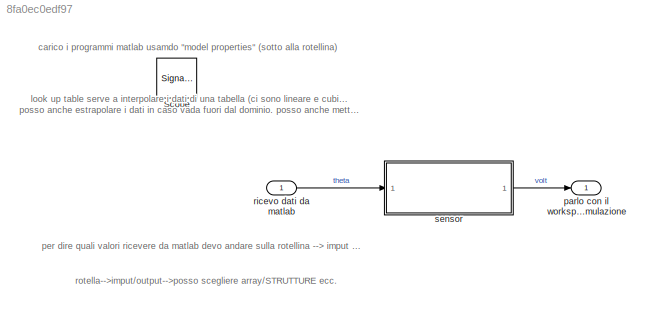
MODEL slx_8fa0ec0edf97
KIND model
CONFIG InitFcn = load 'variabili.mat'\n\n%eseguo il punto m per inizializzare la porta di imput\n%senza load, loas solo con .mat\nvariabili_porta_imput 
CONFIG StopFcn = tempo = yout.time;\n\nuscita = yout.signals.values;\n\nplot(tempo,uscita)
BLOCK [SignalViewerScope] Scope
  IOType = viewer
  MaxDataPoints = 7500
  NumInputPorts = 2
  Ports = []
  RefreshTime = 0.035000
  ShowDataMarkers = off
  ShowLegends = off
  YMax = 5~5
  YMin = -5~-5
BLOCK [Outport] parlo con il workspace a fine simulazione
  IconDisplay = Port number
BLOCK [Inport] ricevo dati da matlab
  IconDisplay = Port number
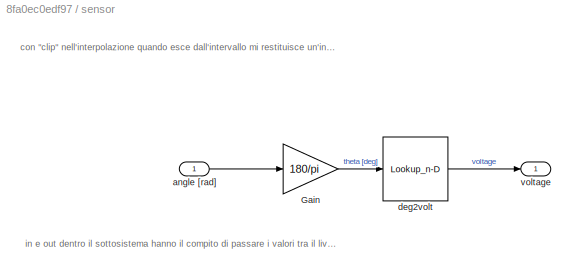
BLOCK [SubSystem] sensor
  FunctionWithSeparateData = off
  MaskHideContents = off
  MinAlgLoopOccurrences = off
  Opaque = off
  Ports = [1, 1]
  PropExecContextOutsideSubsystem = off
  RTWSystemCode = Auto
  RequestExecContextInheritance = off
BLOCK [Gain] sensor/Gain
  Gain = 180/pi
  OutDataTypeStr = Inherit: Inherit via internal rule
  ParamDataTypeStr = Inherit: Inherit via internal rule
  SaturateOnIntegerOverflow = off
BLOCK [Inport] sensor/angle [rad]
  IconDisplay = Port number
BLOCK [Lookup_n-D] sensor/deg2volt
  BreakpointsForDimension1 = var
  ExtrapMethod = Clip
  InternalRulePriority = Speed
  NumberOfTableDimensions = 1
  Ports = [1, 1]
  RndMeth = Simplest
  Table = var2
  TableMax = [4.5]
  TableMin = [0.5]
BLOCK [Outport] sensor/voltage
  IconDisplay = Port number
ANNOTATION (root): carico i programmi matlab usamdo "model properties" (sotto alla rotellina)
ANNOTATION (root): look up table serve a interpolare i dati di una tabella (ci sono lineare e cubic spline) posso anche estrapolare i dati in caso vada fuori dal dominio. posso anche mettere una saturazione.
ANNOTATION (root): per dire quali valori ricevere da matlab devo andare sulla rotellina --> imput e output --> metto il nome delle variabili
ANNOTATION (root): rotella-->imput/output-->posso scegliere array/STRUTTURE ecc.
ANNOTATION sensor: con "clip" nell'interpolazione quando esce dall'intervallo mi restituisce un'interpolazione costante uguale al segnale di saturazione
ANNOTATION sensor: in e out dentro il sottosistema hanno il compito di passare i valori tra il livello sottosistema ed il livello sistema
LINE ricevo dati da matlab:1 -> sensor:1
LINE sensor/Gain:1 -> sensor/deg2volt:1
LINE sensor/angle [rad]:1 -> sensor/Gain:1
LINE sensor/deg2volt:1 -> sensor/voltage:1
LINE sensor:1 -> parlo con il workspace a fine simulazione:1
